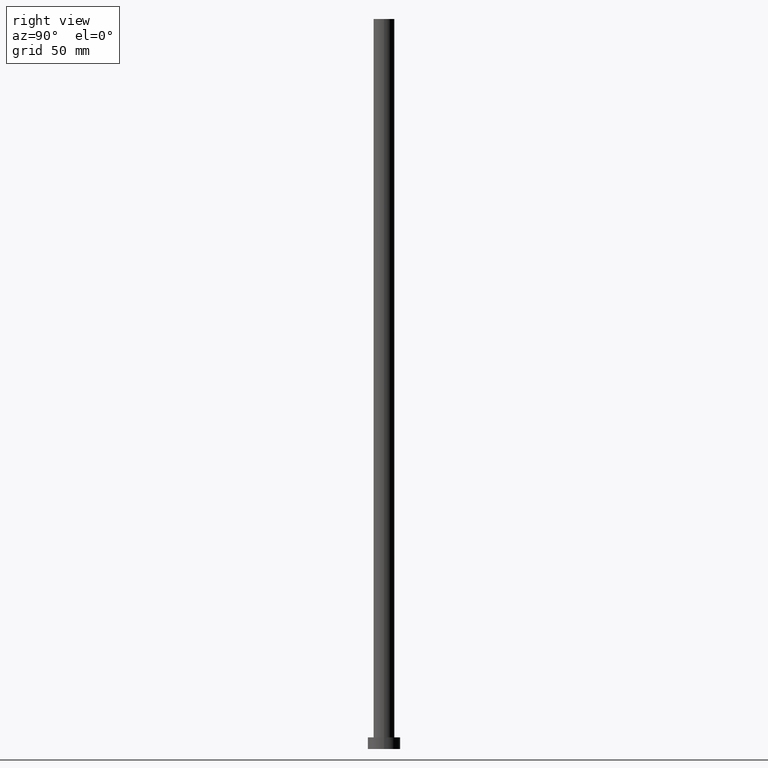
[diagram: clean part render]
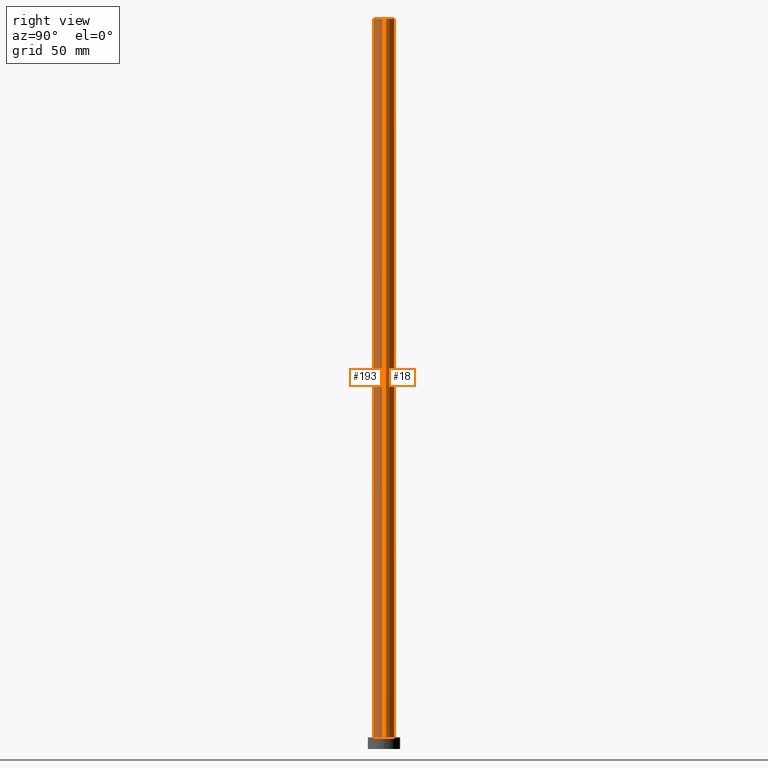
[diagram: same view with one multi-face feature highlighted, each face labeled with its STEP entity id]
A machine part, right view. The highlighted faces form ONE feature: a constant-radius fillet chain: 2 tangent blend faces with common blend radius 4.5 mm. The faces share edges in the B-rep.
Their STEP definitions:
[1] entity #18 (Cylinder):
#1 = FACE_OUTER_BOUND ( 'NONE', #218, .T. ) ;
#9 = AXIS2_PLACEMENT_3D ( 'NONE', #122, #124, #255 ) ;
#18 = ADVANCED_FACE ( 'NONE', ( #1 ), #141, .T. ) ;
#23 = ORIENTED_EDGE ( 'NONE', *, *, #224, .T. ) ;
#34 = EDGE_CURVE ( 'NONE', #100, #121, #89, .T. ) ;
#36 = DIRECTION ( 'NONE',  ( -0.000000000000000000, -0.000000000000000000, -1.000000000000000000 ) ) ;
#48 = DIRECTION ( 'NONE',  ( 0.000000000000000000, 0.000000000000000000, 1.000000000000000000 ) ) ;
#52 = VECTOR ( 'NONE', #36, 1000.000000000000000 ) ;
#61 = ORIENTED_EDGE ( 'NONE', *, *, #34, .F. ) ;
#70 = DIRECTION ( 'NONE',  ( 1.000000000000000000, 0.000000000000000000, 0.000000000000000000 ) ) ;
#72 = EDGE_CURVE ( 'NONE', #195, #100, #92, .T. ) ;
#79 = VECTOR ( 'NONE', #219, 1000.000000000000000 ) ;
#80 = CARTESIAN_POINT ( 'NONE',  ( 0.000000000000000000, 0.000000000000000000, 5.000000000000000000 ) ) ;
#87 = DIRECTION ( 'NONE',  ( 0.000000000000000000, 0.000000000000000000, 1.000000000000000000 ) ) ;
#89 = LINE ( 'NONE', #207, #79 ) ;
#92 = CIRCLE ( 'NONE', #150, 4.500000000000000888 ) ;
#100 = VERTEX_POINT ( 'NONE', #220 ) ;
#102 = CARTESIAN_POINT ( 'NONE',  ( -4.500000000000000888, 0.000000000000000000, 5.000000000000000000 ) ) ;
#111 = CARTESIAN_POINT ( 'NONE',  ( 4.500000000000000888, 5.510910596163089556E-16, 315.0000000000000000 ) ) ;
#118 = VERTEX_POINT ( 'NONE', #225 ) ;
#120 = AXIS2_PLACEMENT_3D ( 'NONE', #80, #48, #147 ) ;
#121 = VERTEX_POINT ( 'NONE', #102 ) ;
#122 = CARTESIAN_POINT ( 'NONE',  ( 0.000000000000000000, 0.000000000000000000, 315.0000000000000000 ) ) ;
#124 = DIRECTION ( 'NONE',  ( -0.000000000000000000, -0.000000000000000000, -1.000000000000000000 ) ) ;
#134 = CARTESIAN_POINT ( 'NONE',  ( 4.500000000000000888, 5.510910596163089556E-16, 315.0000000000000000 ) ) ;
#137 = ORIENTED_EDGE ( 'NONE', *, *, #145, .T. ) ;
#141 = CYLINDRICAL_SURFACE ( 'NONE', #9, 4.500000000000000888 ) ;
#145 = EDGE_CURVE ( 'NONE', #118, #121, #247, .T. ) ;
#147 = DIRECTION ( 'NONE',  ( 1.000000000000000000, 0.000000000000000000, 0.000000000000000000 ) ) ;
#150 = AXIS2_PLACEMENT_3D ( 'NONE', #189, #87, #70 ) ;
#173 = LINE ( 'NONE', #111, #52 ) ;
#189 = CARTESIAN_POINT ( 'NONE',  ( 0.000000000000000000, 0.000000000000000000, 315.0000000000000000 ) ) ;
#195 = VERTEX_POINT ( 'NONE', #134 ) ;
#198 = ORIENTED_EDGE ( 'NONE', *, *, #72, .F. ) ;
#207 = CARTESIAN_POINT ( 'NONE',  ( -4.500000000000000888, 0.000000000000000000, 315.0000000000000000 ) ) ;
#218 = EDGE_LOOP ( 'NONE', ( #198, #23, #137, #61 ) ) ;
#219 = DIRECTION ( 'NONE',  ( -0.000000000000000000, -0.000000000000000000, -1.000000000000000000 ) ) ;
#220 = CARTESIAN_POINT ( 'NONE',  ( -4.500000000000000888, 0.000000000000000000, 315.0000000000000000 ) ) ;
#224 = EDGE_CURVE ( 'NONE', #195, #118, #173, .T. ) ;
#225 = CARTESIAN_POINT ( 'NONE',  ( 4.500000000000000888, 5.510910596163089556E-16, 5.000000000000000000 ) ) ;
#247 = CIRCLE ( 'NONE', #120, 4.500000000000000888 ) ;
#255 = DIRECTION ( 'NONE',  ( -1.000000000000000000, 0.000000000000000000, 0.000000000000000000 ) ) ;
[2] entity #193 (Cylinder):
#4 = EDGE_CURVE ( 'NONE', #100, #195, #245, .T. ) ;
#16 = ORIENTED_EDGE ( 'NONE', *, *, #34, .T. ) ;
#21 = EDGE_LOOP ( 'NONE', ( #116, #236, #16, #215 ) ) ;
#29 = CARTESIAN_POINT ( 'NONE',  ( 0.000000000000000000, 0.000000000000000000, 315.0000000000000000 ) ) ;
#33 = DIRECTION ( 'NONE',  ( -1.000000000000000000, 0.000000000000000000, 0.000000000000000000 ) ) ;
#34 = EDGE_CURVE ( 'NONE', #100, #121, #89, .T. ) ;
#36 = DIRECTION ( 'NONE',  ( -0.000000000000000000, -0.000000000000000000, -1.000000000000000000 ) ) ;
#52 = VECTOR ( 'NONE', #36, 1000.000000000000000 ) ;
#79 = VECTOR ( 'NONE', #219, 1000.000000000000000 ) ;
#89 = LINE ( 'NONE', #207, #79 ) ;
#90 = AXIS2_PLACEMENT_3D ( 'NONE', #29, #204, #167 ) ;
#91 = DIRECTION ( 'NONE',  ( -0.000000000000000000, -0.000000000000000000, -1.000000000000000000 ) ) ;
#96 = FACE_OUTER_BOUND ( 'NONE', #21, .T. ) ;
#100 = VERTEX_POINT ( 'NONE', #220 ) ;
#102 = CARTESIAN_POINT ( 'NONE',  ( -4.500000000000000888, 0.000000000000000000, 5.000000000000000000 ) ) ;
#111 = CARTESIAN_POINT ( 'NONE',  ( 4.500000000000000888, 5.510910596163089556E-16, 315.0000000000000000 ) ) ;
#116 = ORIENTED_EDGE ( 'NONE', *, *, #224, .F. ) ;
#118 = VERTEX_POINT ( 'NONE', #225 ) ;
#121 = VERTEX_POINT ( 'NONE', #102 ) ;
#125 = DIRECTION ( 'NONE',  ( 1.000000000000000000, 0.000000000000000000, 0.000000000000000000 ) ) ;
#134 = CARTESIAN_POINT ( 'NONE',  ( 4.500000000000000888, 5.510910596163089556E-16, 315.0000000000000000 ) ) ;
#163 = CARTESIAN_POINT ( 'NONE',  ( 0.000000000000000000, 0.000000000000000000, 5.000000000000000000 ) ) ;
#167 = DIRECTION ( 'NONE',  ( 1.000000000000000000, 0.000000000000000000, 0.000000000000000000 ) ) ;
#169 = EDGE_CURVE ( 'NONE', #121, #118, #170, .T. ) ;
#170 = CIRCLE ( 'NONE', #231, 4.500000000000000888 ) ;
#173 = LINE ( 'NONE', #111, #52 ) ;
#176 = CARTESIAN_POINT ( 'NONE',  ( 0.000000000000000000, 0.000000000000000000, 315.0000000000000000 ) ) ;
#193 = ADVANCED_FACE ( 'NONE', ( #96 ), #214, .T. ) ;
#195 = VERTEX_POINT ( 'NONE', #134 ) ;
#204 = DIRECTION ( 'NONE',  ( 0.000000000000000000, 0.000000000000000000, 1.000000000000000000 ) ) ;
#207 = CARTESIAN_POINT ( 'NONE',  ( -4.500000000000000888, 0.000000000000000000, 315.0000000000000000 ) ) ;
#208 = AXIS2_PLACEMENT_3D ( 'NONE', #176, #91, #33 ) ;
#214 = CYLINDRICAL_SURFACE ( 'NONE', #208, 4.500000000000000888 ) ;
#215 = ORIENTED_EDGE ( 'NONE', *, *, #169, .T. ) ;
#219 = DIRECTION ( 'NONE',  ( -0.000000000000000000, -0.000000000000000000, -1.000000000000000000 ) ) ;
#220 = CARTESIAN_POINT ( 'NONE',  ( -4.500000000000000888, 0.000000000000000000, 315.0000000000000000 ) ) ;
#224 = EDGE_CURVE ( 'NONE', #195, #118, #173, .T. ) ;
#225 = CARTESIAN_POINT ( 'NONE',  ( 4.500000000000000888, 5.510910596163089556E-16, 5.000000000000000000 ) ) ;
#231 = AXIS2_PLACEMENT_3D ( 'NONE', #163, #240, #125 ) ;
#236 = ORIENTED_EDGE ( 'NONE', *, *, #4, .F. ) ;
#240 = DIRECTION ( 'NONE',  ( 0.000000000000000000, 0.000000000000000000, 1.000000000000000000 ) ) ;
#245 = CIRCLE ( 'NONE', #90, 4.500000000000000888 ) ;